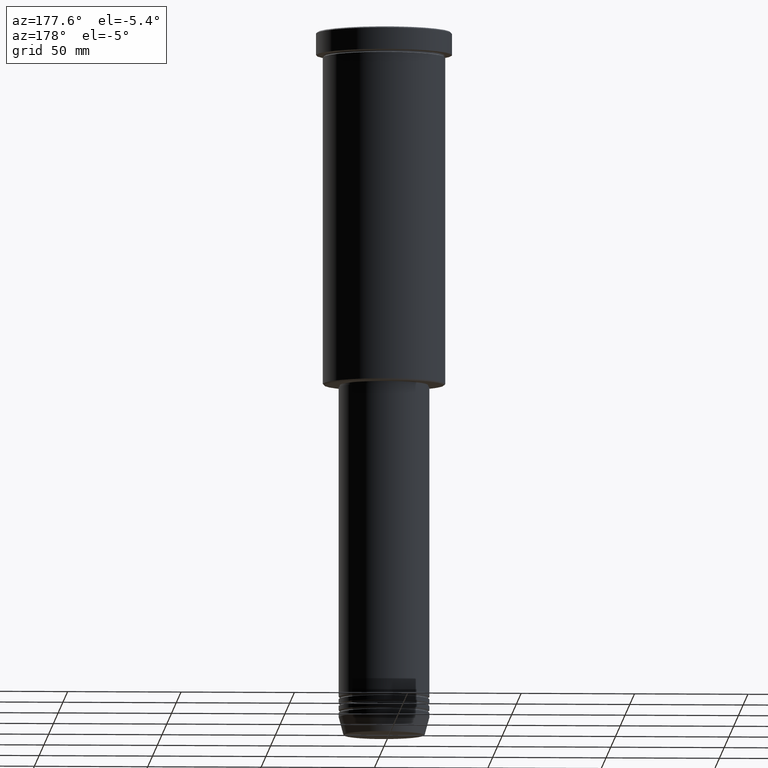
[diagram: clean part render]
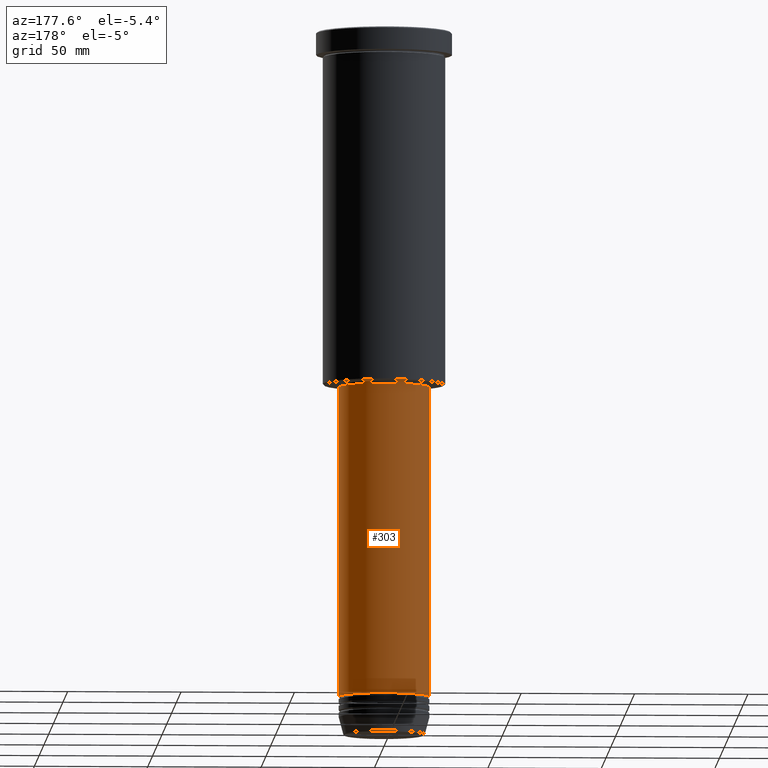
[diagram: same view with one face highlighted and labeled with its STEP entity id]
A machine part, auxiliary view. The second image highlights one B-rep face of the part: STEP entity #303.
In plain terms, the highlighted cylindrical surface (partial cylindrical patch) has radius 20 mm, axis along (-0, -0, 1).
Its self-contained STEP definition (entity closure, byte-faithful):
#25 = CARTESIAN_POINT ( 'NONE',  ( -20.00000000000000000, 2.449293598294706513E-15, 0.000000000000000000 ) ) ;
#55 = VERTEX_POINT ( 'NONE', #357 ) ;
#71 = DIRECTION ( 'NONE',  ( 1.000000000000000000, 0.000000000000000000, 0.000000000000000000 ) ) ;
#74 = AXIS2_PLACEMENT_3D ( 'NONE', #694, #594, #242 ) ;
#136 = EDGE_CURVE ( 'NONE', #55, #849, #906, .T. ) ;
#185 = CARTESIAN_POINT ( 'NONE',  ( 20.00000000000000000, 0.000000000000000000, -156.9999999999999147 ) ) ;
#242 = DIRECTION ( 'NONE',  ( 1.000000000000000000, 0.000000000000000000, 0.000000000000000000 ) ) ;
#247 = DIRECTION ( 'NONE',  ( -0.000000000000000000, -0.000000000000000000, 1.000000000000000000 ) ) ;
#303 = ADVANCED_FACE ( 'NONE', ( #1162 ), #600, .T. ) ;
#307 = DIRECTION ( 'NONE',  ( -0.000000000000000000, -0.000000000000000000, 1.000000000000000000 ) ) ;
#349 = CARTESIAN_POINT ( 'NONE',  ( -20.00000000000000000, 2.449293598294706513E-15, -156.9999999999999147 ) ) ;
#352 = ORIENTED_EDGE ( 'NONE', *, *, #729, .F. ) ;
#357 = CARTESIAN_POINT ( 'NONE',  ( 20.00000000000000000, 0.000000000000000000, -294.0000000000000000 ) ) ;
#389 = DIRECTION ( 'NONE',  ( -0.000000000000000000, -0.000000000000000000, 1.000000000000000000 ) ) ;
#413 = CARTESIAN_POINT ( 'NONE',  ( 0.000000000000000000, 0.000000000000000000, -294.0000000000000000 ) ) ;
#418 = EDGE_LOOP ( 'NONE', ( #724, #1108, #352, #429 ) ) ;
#420 = LINE ( 'NONE', #784, #663 ) ;
#429 = ORIENTED_EDGE ( 'NONE', *, *, #702, .F. ) ;
#444 = VERTEX_POINT ( 'NONE', #185 ) ;
#467 = VERTEX_POINT ( 'NONE', #349 ) ;
#479 = AXIS2_PLACEMENT_3D ( 'NONE', #606, #247, #71 ) ;
#588 = VECTOR ( 'NONE', #389, 1000.000000000000000 ) ;
#594 = DIRECTION ( 'NONE',  ( -0.000000000000000000, -0.000000000000000000, 1.000000000000000000 ) ) ;
#600 = CYLINDRICAL_SURFACE ( 'NONE', #479, 20.00000000000000000 ) ;
#606 = CARTESIAN_POINT ( 'NONE',  ( 0.000000000000000000, 0.000000000000000000, 0.000000000000000000 ) ) ;
#654 = EDGE_CURVE ( 'NONE', #849, #467, #656, .T. ) ;
#656 = LINE ( 'NONE', #25, #588 ) ;
#663 = VECTOR ( 'NONE', #872, 1000.000000000000000 ) ;
#667 = DIRECTION ( 'NONE',  ( 1.000000000000000000, 0.000000000000000000, 0.000000000000000000 ) ) ;
#677 = AXIS2_PLACEMENT_3D ( 'NONE', #413, #307, #667 ) ;
#694 = CARTESIAN_POINT ( 'NONE',  ( 0.000000000000000000, 0.000000000000000000, -156.9999999999999147 ) ) ;
#702 = EDGE_CURVE ( 'NONE', #55, #444, #420, .T. ) ;
#724 = ORIENTED_EDGE ( 'NONE', *, *, #136, .T. ) ;
#729 = EDGE_CURVE ( 'NONE', #444, #467, #1110, .T. ) ;
#784 = CARTESIAN_POINT ( 'NONE',  ( 20.00000000000000000, 0.000000000000000000, 0.000000000000000000 ) ) ;
#826 = CARTESIAN_POINT ( 'NONE',  ( -20.00000000000000000, 2.449293598294706513E-15, -294.0000000000000000 ) ) ;
#849 = VERTEX_POINT ( 'NONE', #826 ) ;
#872 = DIRECTION ( 'NONE',  ( -0.000000000000000000, -0.000000000000000000, 1.000000000000000000 ) ) ;
#906 = CIRCLE ( 'NONE', #677, 20.00000000000000000 ) ;
#1108 = ORIENTED_EDGE ( 'NONE', *, *, #654, .T. ) ;
#1110 = CIRCLE ( 'NONE', #74, 20.00000000000000000 ) ;
#1162 = FACE_OUTER_BOUND ( 'NONE', #418, .T. ) ;